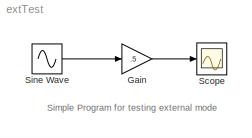
MODEL extTest
KIND model
BLOCK [Gain] Gain
  Gain = .5
  OutDataTypeStr = Inherit: Inherit via internal rule
  ParamDataTypeStr = Inherit: Inherit via internal rule
  SID = 1
  SaturateOnIntegerOverflow = off
BLOCK [Scope] Scope
  DataFormat = StructureWithTime
  Floating = off
  NumInputPorts = 1
  Ports = [1]
  SID = 2
  SampleTime = 0
  YMax = 4
  YMin = -4
BLOCK [Sin] Sine Wave
  Amplitude = 2
  Bias = 2
  Frequency = 4
  Ports = [0, 1]
  SID = 3
  SampleTime = 0
  Samples = 100
ANNOTATION (root): Simple Program for testing external mode
LINE Gain:1 -> Scope:1
LINE Sine Wave:1 -> Gain:1
